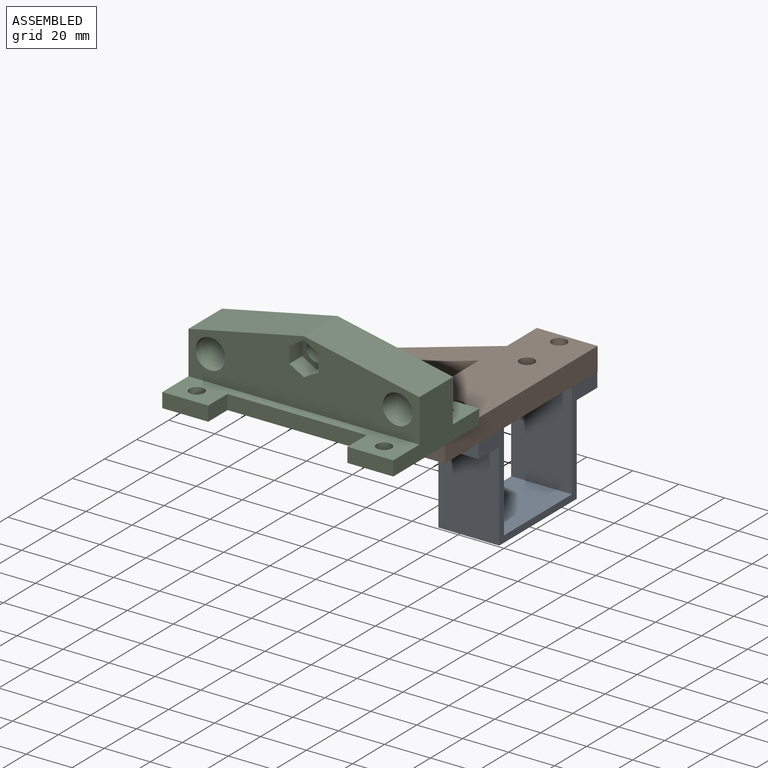
[diagram: assembled view]
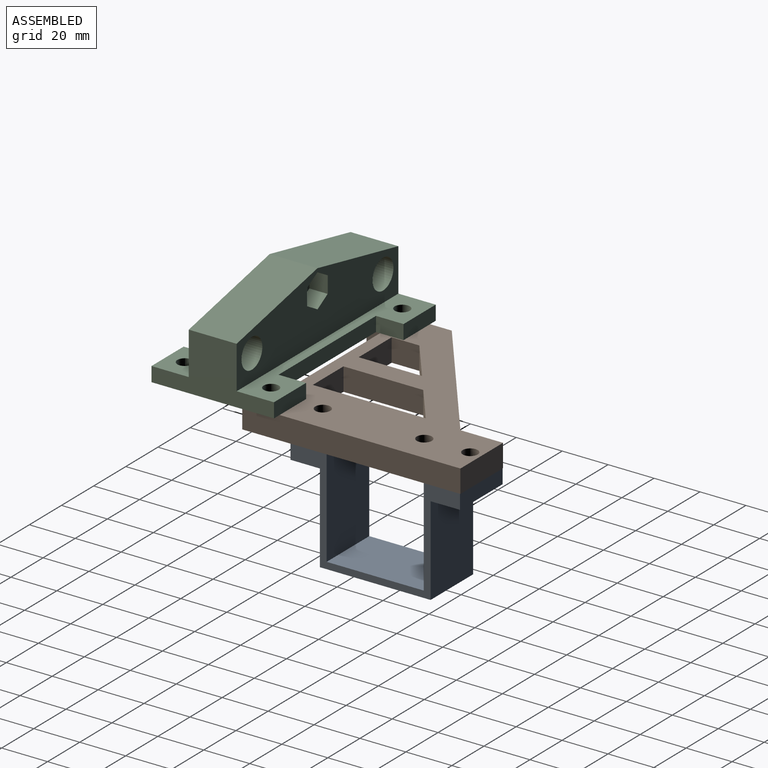
[diagram: assembled view, second angle]
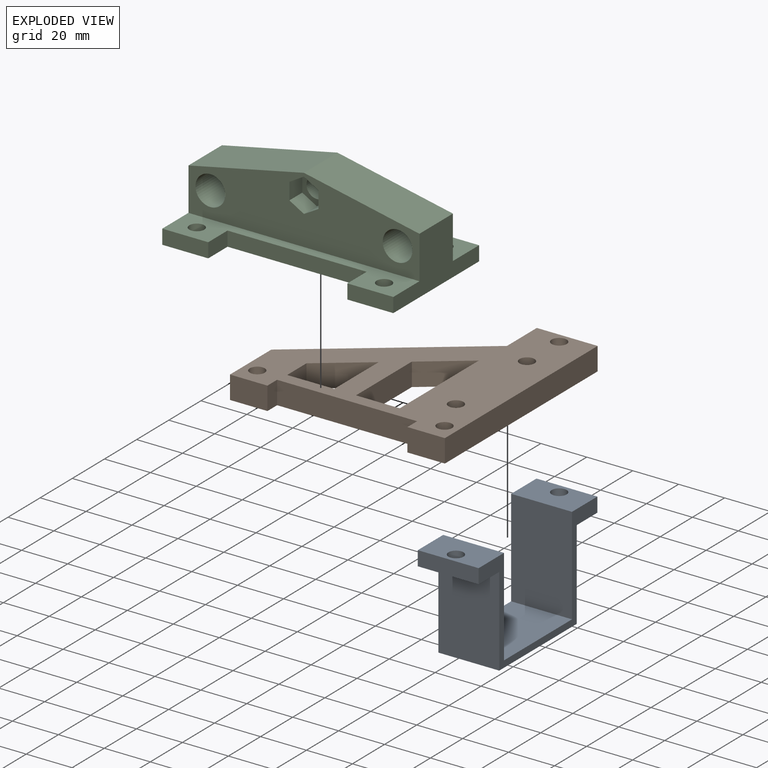
[diagram: exploded view]
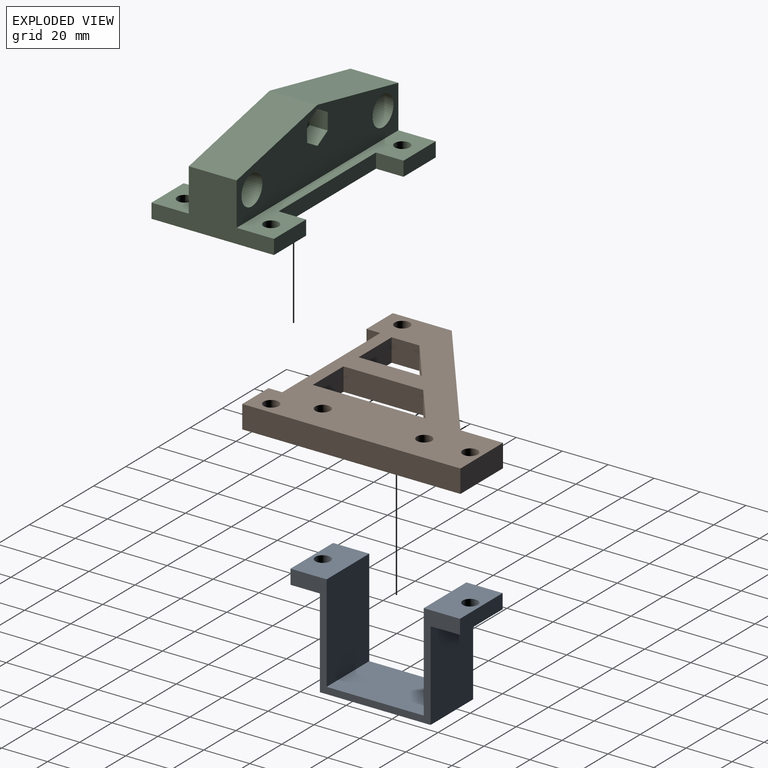
[diagram: exploded view, second angle]
ASSEMBLY  parts=3 mates=2
PART A: 16 faces, bbox 45.2x73.8x26.5 mm
  f0: plane 26.5x15.75mm, normal (1,0,0), area 383.9mm2, adj f1,f9,f10,f11,f13
  f1: plane 73.8x45.2mm, normal (0,0,1), area 551.9mm2, adj f0,f2,f3,f4,f5,f6,f7,f8
  f2: plane 26.5x12.8mm, normal (-1,0,0), area 305.7mm2, adj f1,f3,f9,f10,f11
  f3: plane 38.85x26.5mm, normal (0,1,0), area 1029.5mm2, adj f1,f2,f4,f10
  f4: plane 48.2x26.5mm, normal (-1,0,0), area 1277.3mm2, adj f1,f3,f5,f10
  f5: plane 38.85x26.5mm, normal (0,-1,0), area 1029.5mm2, adj f1,f4,f6,f10
  f6: plane 26.5x12.8mm, normal (-1,0,0), area 305.7mm2, adj f1,f5,f7,f10,f12
  f7: plane 26.5x6.35mm, normal (0,-1,0), area 168.3mm2, adj f1,f6,f8,f10
  f8: plane 26.5x15.75mm, normal (1,0,0), area 383.9mm2, adj f1,f7,f10,f12,f14
  f9: plane 26.5x6.35mm, normal (0,1,0), area 168.3mm2, adj f0,f1,f2,f10
  f10: plane 73.8x45.2mm, normal (0,0,-1), area 551.9mm2, adj f0,f2,f3,f4,f5,f6,f7,f8
  f11: cylinder r=3.26mm len=6.53mm, axis (-1,0,0), area 130.2mm2, adj f0,f2
  f12: cylinder r=3.26mm len=6.53mm, axis (-1,0,0), area 130.2mm2, adj f6,f8
  f13: plane 42.3x26.5mm, normal (0,-1,0), area 1120.9mm2, adj f0,f1,f10,f15
  f14: plane 42.3x26.5mm, normal (0,1,0), area 1120.9mm2, adj f1,f8,f10,f15
  f15: plane 42.3x26.5mm, normal (1,0,0), area 1120.9mm2, adj f1,f10,f13,f14
PART B: 25 faces, bbox 93.6x95x10 mm
  f0: plane 95x93.58mm, normal (0,0,1), area 4203.6mm2, adj f1,f3,f4,f5,f6,f7,f8,f9
  f1: plane 95x10mm, normal (1,0,0), area 950mm2, adj f0,f2,f5,f16
  f2: plane 95x93.58mm, normal (0,0,-1), area 4203.6mm2, adj f1,f3,f4,f5,f6,f7,f8,f9
  f3: plane 16.31x10mm, normal (0,1,0), area 163.1mm2, adj f0,f2,f8,f12
  f4: plane 67.08x50.75mm, normal (-0.6,-0.8,0), area 841.2mm2, adj f0,f2,f11,f12
  f5: plane 16.31x10mm, normal (0,1,0), area 163.1mm2, adj f0,f1,f2,f9
  f6: cylinder r=3.26mm len=10mm, axis (0,0,1), area 205.1mm2, adj f0,f2
  f7: cylinder r=3.26mm len=10mm, axis (0,0,1), area 205.1mm2, adj f0,f2
  f8: plane 10x6mm, normal (1,0,0), area 60mm2, adj f0,f2,f3,f10
  f9: plane 10x6mm, normal (-1,0,0), area 60mm2, adj f0,f2,f5,f10
  f10: plane 60.96x10mm, normal (0,1,0), area 609.6mm2, adj f0,f2,f8,f9
  f11: plane 18.55x10mm, normal (-1,0,0), area 185.5mm2, adj f0,f2,f4,f16
  f12: plane 25.7x10mm, normal (-1,0,0), area 257mm2, adj f0,f2,f3,f4
  f13: cylinder r=3.26mm len=10mm, axis (0,0,1), area 205.1mm2, adj f0,f2
  f14: cylinder r=3.26mm len=10mm, axis (0,0,1), area 205.1mm2, adj f0,f2
  f15: cylinder r=3.26mm len=10mm, axis (0,0,1), area 205.1mm2, adj f0,f2
  f16: plane 26.5x10mm, normal (0,-1,0), area 265mm2, adj f0,f1,f2,f11
  f17: plane 19.07x10mm, normal (0,-1,0), area 190.7mm2, adj f0,f2,f18,f19
  f18: plane 34.74x10mm, normal (1,0,0), area 347.4mm2, adj f0,f2,f17,f20
  f19: plane 49.17x10mm, normal (-1,0,0), area 491.7mm2, adj f0,f2,f17,f20
  f20: plane 19.07x14.42mm, normal (0.6,0.8,0), area 239.1mm2, adj f0,f2,f18,f19
  f21: plane 20.53x10mm, normal (0,-1,0), area 205.2mm2, adj f0,f2,f22,f23
  f22: plane 12.07x10mm, normal (1,0,0), area 120.7mm2, adj f0,f2,f21,f24
  f23: plane 27.6x10mm, normal (-1,0,0), area 276mm2, adj f0,f2,f21,f24
  f24: plane 20.53x15.53mm, normal (0.6,0.8,0), area 257.4mm2, adj f0,f2,f22,f23
PART C: 40 faces, bbox 100.6x53.3x35.6 mm
  f0: plane 53.34x25.01mm, normal (-1,0,0), area 727.4mm2, adj f1,f2,f5,f7,f8,f9,f10,f39
  f1: plane 100.58x29.21mm, normal (0,1,0), area 2004.8mm2, adj f0,f3,f7,f18,f19,f20,f21,f22
  f2: plane 100.58x29.21mm, normal (0,-1,0), area 2004.8mm2, adj f0,f3,f10,f11,f12,f13,f14,f15
  f3: plane 53.34x25.01mm, normal (1,0,0), area 727.4mm2, adj f1,f2,f4,f5,f6,f7,f10,f38
  f4: plane 20x6.35mm, normal (0,-1,0), area 127mm2, adj f3,f5,f10,f35
  f5: plane 100.58x53.34mm, normal (0,0,-1), area 3777.3mm2, adj f0,f3,f4,f6,f8,f9,f28,f29
  f6: plane 20x6.35mm, normal (0,1,0), area 127mm2, adj f3,f5,f7,f33
  f7: plane 100.58x16.26mm, normal (0,0,1), area 841.1mm2, adj f0,f1,f3,f6,f9,f29,f30,f32
  f8: plane 20x6.35mm, normal (0,-1,0), area 127mm2, adj f0,f5,f10,f37
  f9: plane 20x6.35mm, normal (0,1,0), area 127mm2, adj f0,f5,f7,f32
  f10: plane 100.58x16.26mm, normal (0,0,1), area 841.1mm2, adj f0,f2,f3,f4,f8,f28,f31,f35
  f11: plane 8x6.34mm, normal (-0.5,0,-0.87), area 58.6mm2, adj f2,f12,f16,f17
  f12: plane 8x6.34mm, normal (0.5,0,-0.87), area 58.6mm2, adj f2,f11,f13,f17
  f13: plane 8x7.32mm, normal (1,0,0), area 58.6mm2, adj f2,f12,f14,f17
  f14: plane 8x6.34mm, normal (0.5,0,0.87), area 58.6mm2, adj f2,f13,f15,f17
  f15: plane 8x6.34mm, normal (-0.5,0,0.87), area 58.6mm2, adj f2,f14,f16,f17
  f16: plane 8x7.32mm, normal (-1,0,0), area 58.6mm2, adj f2,f11,f15,f17
  f17: plane 14.64x12.68mm, normal (0,-1,0), area 75.6mm2, adj f11,f12,f13,f14,f15,f16,f25
  f18: plane 8x6.34mm, normal (0.5,0,-0.87), area 58.6mm2, adj f1,f19,f23,f24
  f19: plane 8x6.34mm, normal (-0.5,0,-0.87), area 58.6mm2, adj f1,f18,f20,f24
  f20: plane 8x7.32mm, normal (-1,0,0), area 58.6mm2, adj f1,f19,f21,f24
  f21: plane 8x6.34mm, normal (-0.5,0,0.87), area 58.6mm2, adj f1,f20,f22,f24
  f22: plane 8x6.34mm, normal (0.5,0,0.87), area 58.6mm2, adj f1,f21,f23,f24
  f23: plane 8x7.32mm, normal (1,0,0), area 58.6mm2, adj f1,f18,f22,f24
  f24: plane 14.64x12.68mm, normal (0,1,0), area 75.6mm2, adj f18,f19,f20,f21,f22,f23,f25
  f25: cylinder r=4.5mm len=9mm, axis (0,1,0), area 136.5mm2, adj f17,f24
  f26: cylinder r=6.48mm len=20.83mm, axis (0,-1,0), area 847.6mm2, adj f1,f2
  f27: cylinder r=6.48mm len=20.83mm, axis (0,-1,0), area 847.6mm2, adj f1,f2
  f28: cylinder r=3.26mm len=6.53mm, axis (0,0,1), area 130.2mm2, adj f5,f10
  f29: cylinder r=3.26mm len=6.53mm, axis (0,0,1), area 130.2mm2, adj f5,f7
  f30: cylinder r=3.26mm len=6.53mm, axis (0,0,1), area 130.2mm2, adj f5,f7
  f31: cylinder r=3.26mm len=6.53mm, axis (0,0,1), area 130.2mm2, adj f5,f10
  f32: plane 12x6.35mm, normal (1,0,0), area 76.2mm2, adj f5,f7,f9,f34
  f33: plane 12x6.35mm, normal (-1,0,0), area 76.2mm2, adj f5,f6,f7,f34
  f34: plane 60.58x6.35mm, normal (0,1,0), area 384.7mm2, adj f5,f7,f32,f33
  f35: plane 12x6.35mm, normal (-1,0,0), area 76.2mm2, adj f4,f5,f10,f36
  f36: plane 60.58x6.35mm, normal (0,-1,0), area 384.7mm2, adj f5,f10,f35,f37
  f37: plane 12x6.35mm, normal (1,0,0), area 76.2mm2, adj f5,f8,f10,f36
  f38: plane 50.29x20.83mm, normal (0.21,0,0.98), area 1070.3mm2, adj f1,f2,f3,f39
  f39: plane 50.29x20.83mm, normal (-0.21,0,0.98), area 1070.3mm2, adj f0,f1,f2,f38
PLACE A rot(axis=(0,-1,0),90deg) t=(41.31,61.62,-17.73)mm
PLACE B rot(axis=(1,0,0),180deg) t=(-25.26,61.8,3.86)mm
PLACE C t=(-7.64,4.17,3.86)mm
MATE fastened B.f7 <-> C.f30  axis (0,0,1) through (35.28,24.06,3.86)mm
MATE fastened A.f11 <-> B.f14  axis (0,0,1) through (28.06,105.67,-6.14)mm
